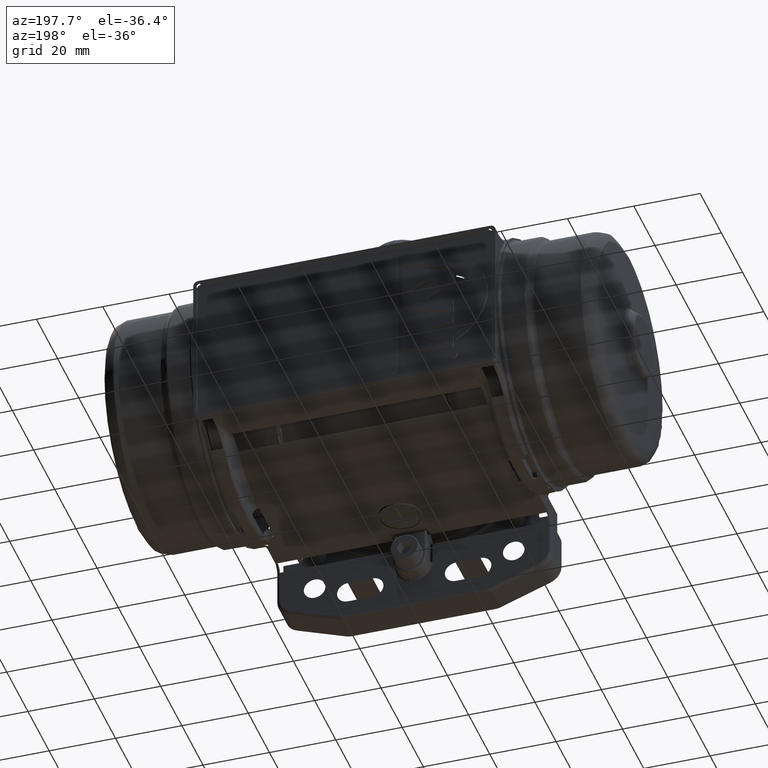
[diagram: clean part render]
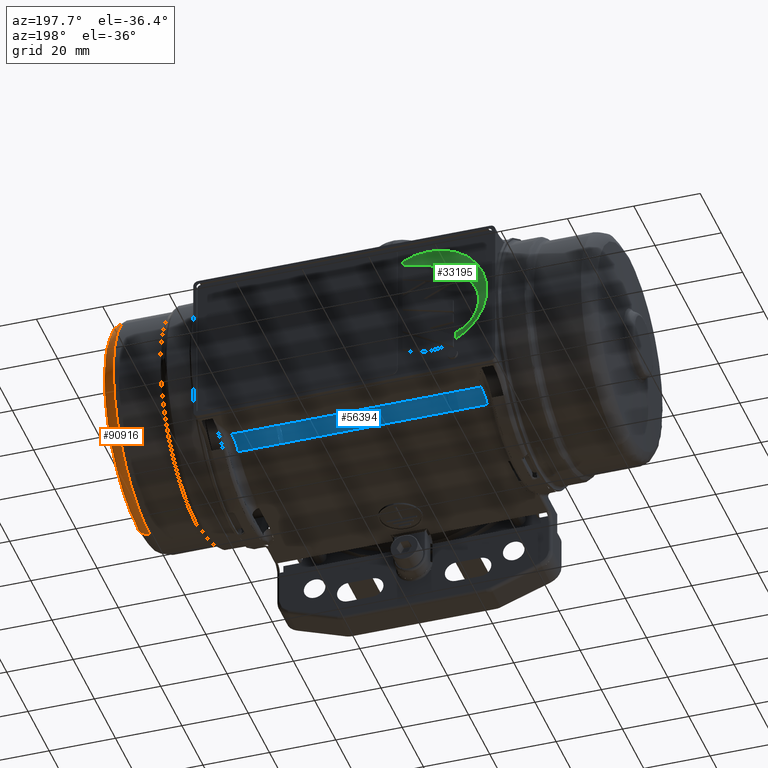
[diagram: same view with three faces highlighted in distinct colors, each labeled with its STEP entity id]
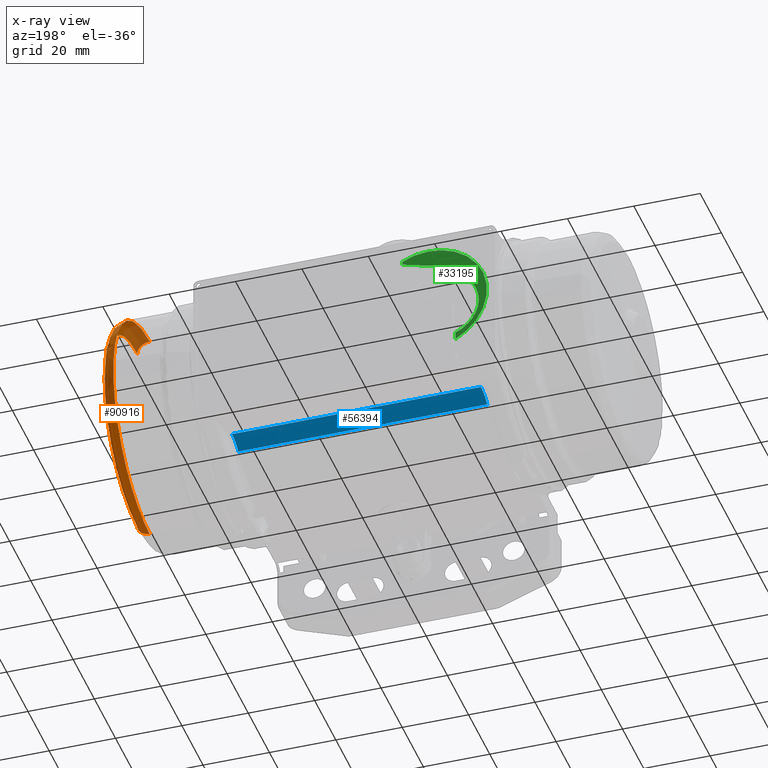
[diagram: x-ray of the same camera — body ghosted, the three highlighted faces saturated]
A machine part, auxiliary view with three faces highlighted in distinct colors.
The next image is the same camera in x-ray (body ghosted, the three faces saturated) — at least one of them is partly hidden behind the body in this view.
Their STEP definitions:

[orange] entity #90916 — the highlighted face is a freeform B-spline surface patch.
#154 = CARTESIAN_POINT ( 'NONE',  ( 71.84616858138170400, -23.07058983013639900, 25.00317688043774900 ) ) ;
#572 = CARTESIAN_POINT ( 'NONE',  ( 71.84616858138170400, -33.34469816173835000, 6.714140514754750400 ) ) ;
#656 = CARTESIAN_POINT ( 'NONE',  ( 70.43574938282010600, 0.3360905649999960100, -34.30299282390215200 ) ) ;
#991 = CARTESIAN_POINT ( 'NONE',  ( 71.84616858138170400, 32.05872122068554800, -13.16247379832032000 ) ) ;
#1408 = CARTESIAN_POINT ( 'NONE',  ( 71.84616858138170400, 7.021554411426430800, 33.51550353318204900 ) ) ;
#1827 = CARTESIAN_POINT ( 'NONE',  ( 73.06222453156000500, -13.46311546485228000, 30.51341199380139800 ) ) ;
#2247 = CARTESIAN_POINT ( 'NONE',  ( 73.92288612965070600, -24.60011871129570000, 20.48379015808129800 ) ) ;
#2425 = CARTESIAN_POINT ( 'NONE',  ( 70.43574938282010600, 0.3360905649999960100, -34.30299282390215200 ) ) ;
#2550 = CARTESIAN_POINT ( 'NONE',  ( 70.43574938282010600, 0.3360905650000000100, -0.002992830000007200100 ) ) ;
#2657 = CARTESIAN_POINT ( 'NONE',  ( 73.92288612965060700, -22.60644249168589700, -22.92140921378684800 ) ) ;
#3055 = CARTESIAN_POINT ( 'NONE',  ( 73.92288612965070600, -0.7009685618603099800, 32.21844872052780300 ) ) ;
#3183 = CARTESIAN_POINT ( 'NONE',  ( 71.84616858138170400, 0.3181463391479345000, -34.12684089303675700 ) ) ;
#3475 = CARTESIAN_POINT ( 'NONE',  ( 73.92288612965060700, -26.63677203919919700, -18.00517646669470300 ) ) ;
#3873 = CARTESIAN_POINT ( 'NONE',  ( 73.06222453156009100, 33.27604678807134800, 6.530378756752901000 ) ) ;
#4294 = CARTESIAN_POINT ( 'NONE',  ( 74.22128918806660600, -2.674790984704664700, 30.73064623487700000 ) ) ;
#4800 = CARTESIAN_POINT ( 'NONE',  ( 74.22128918866171400, 15.79887433322512900, 26.74649789419058300 ) ) ;
#5109 = CARTESIAN_POINT ( 'NONE',  ( 74.22128918806531300, 0.3360905649999965700, -0.002992830000007200100 ) ) ;
#5235 = CARTESIAN_POINT ( 'NONE',  ( 74.22128918866172900, 29.59574762434619500, 9.921996068527635200 ) ) ;
#5256 = EDGE_CURVE ( 'NONE', #37044, #107076, #72133, .T. ) ;
#5662 = CARTESIAN_POINT ( 'NONE',  ( 74.22128918866175700, 14.01140798299466000, 27.70293847330645300 ) ) ;
#6142 = CARTESIAN_POINT ( 'NONE',  ( 70.43574938282010600, -18.82800489602329800, 28.71076998319835000 ) ) ;
#6459 = CARTESIAN_POINT ( 'NONE',  ( 74.18057904128930600, 26.51672796140579900, -17.51625843180164900 ) ) ;
#6558 = CARTESIAN_POINT ( 'NONE',  ( 70.43574938282010600, -0.7678865789330759900, 34.29759244525914900 ) ) ;
#6609 = CARTESIAN_POINT ( 'NONE',  ( 71.84616858138170400, 0.3540347908520845600, 34.12085523303675000 ) ) ;
#6863 = CARTESIAN_POINT ( 'NONE',  ( 74.22128918806660600, -30.09478915111484900, 6.065994405119609700 ) ) ;
#6964 = CARTESIAN_POINT ( 'NONE',  ( 70.43574938282010600, -33.52526635811345600, -6.719973349123689500 ) ) ;
#7285 = CARTESIAN_POINT ( 'NONE',  ( 74.22128918806660600, -21.61692190924035000, -21.93292879304250000 ) ) ;
#7469 = CARTESIAN_POINT ( 'NONE',  ( 70.43574938282006300, 17.52293613633774100, -29.77110264382411100 ) ) ;
#7695 = CARTESIAN_POINT ( 'NONE',  ( 74.18057904128940500, 26.40920854585720100, 17.39868693959584800 ) ) ;
#7795 = CARTESIAN_POINT ( 'NONE',  ( 70.90284593313370500, 32.56163429641765100, 12.11484783761244100 ) ) ;
#8227 = CARTESIAN_POINT ( 'NONE',  ( 70.90284593313370500, 19.49989233426350000, -28.71632379756855300 ) ) ;
#8589 = VERTEX_POINT ( 'NONE', #90513 ) ;
#8654 = CARTESIAN_POINT ( 'NONE',  ( 70.43574938282010600, 19.53037402051525400, 28.69059900443515000 ) ) ;
#9072 = CARTESIAN_POINT ( 'NONE',  ( 70.90284593313370500, -9.619568674178021100, 32.87796100071234700 ) ) ;
#9392 = CARTESIAN_POINT ( 'NONE',  ( 74.22128918806660600, 0.3523033260173864500, 30.82819477318324900 ) ) ;
#9500 = CARTESIAN_POINT ( 'NONE',  ( 70.43574938282010600, 7.056064754421700300, 33.68852590421740000 ) ) ;
#9914 = CARTESIAN_POINT ( 'NONE',  ( 73.06222453156009100, -0.7378344126222020600, 33.36387121840474600 ) ) ;
#10318 = CARTESIAN_POINT ( 'NONE',  ( 71.84616858138170400, -9.568441511274759400, 32.70910127555205100 ) ) ;
#10401 = CARTESIAN_POINT ( 'NONE',  ( 70.43574938282009200, 2.580644547571264700, -34.30299283000330500 ) ) ;
#10731 = CARTESIAN_POINT ( 'NONE',  ( 71.84616858138170400, 34.02392515068439800, 6.678714328650900500 ) ) ;
#11174 = CARTESIAN_POINT ( 'NONE',  ( 73.06222453156009100, -2.922361509998724600, 33.25772776959745900 ) ) ;
#11595 = CARTESIAN_POINT ( 'NONE',  ( 73.06222453156009100, -32.60350168630154900, -6.537125527701939600 ) ) ;
#12011 = CARTESIAN_POINT ( 'NONE',  ( 73.92288612965060700, 25.29383223463385400, 20.45755313103875000 ) ) ;
#12425 = CARTESIAN_POINT ( 'NONE',  ( 73.92288612965060700, -12.08954798838646000, -29.95657694869069900 ) ) ;
#12843 = CARTESIAN_POINT ( 'NONE',  ( 73.92288612965070600, 32.14527924329240000, 6.306100239251230200 ) ) ;
#13249 = CARTESIAN_POINT ( 'NONE',  ( 73.92288612965070600, -2.810504899514044900, 32.11594897926499900 ) ) ;
#13654 = CARTESIAN_POINT ( 'NONE',  ( 73.92288612965060700, 27.29000514920990000, -18.03353417909445300 ) ) ;
#14081 = CARTESIAN_POINT ( 'NONE',  ( 74.22128918806660600, -16.88991246988435100, 25.80690601803525300 ) ) ;
#15296 = DIRECTION ( 'NONE',  ( 0.0000000000000000000, 1.406630242772633000E-017, 1.000000000000000000 ) ) ;
#15493 = CARTESIAN_POINT ( 'NONE',  ( 70.43574938282010600, -9.619568674178021100, 32.87796100071234700 ) ) ;
#15860 = VERTEX_POINT ( 'NONE', #29855 ) ;
#16216 = CARTESIAN_POINT ( 'NONE',  ( 74.18057904128930600, 29.73979560866084900, 11.05374575372100000 ) ) ;
#16313 = CARTESIAN_POINT ( 'NONE',  ( 70.43574938282010600, -26.20917034091000300, 21.80573493273729800 ) ) ;
#16616 = CARTESIAN_POINT ( 'NONE',  ( 74.22128918806660600, -11.55362525185925900, -28.66466694336455100 ) ) ;
#17029 = CARTESIAN_POINT ( 'NONE',  ( 74.18057904128940500, -2.720232650399560200, 31.19449302822249900 ) ) ;
#17214 = CARTESIAN_POINT ( 'NONE',  ( 70.43574938282007700, 15.53380322201003900, -30.83410621527787800 ) ) ;
#17438 = CARTESIAN_POINT ( 'NONE',  ( 74.18057904128930600, 31.83424199148150200, -0.01937788834485120300 ) ) ;
#17534 = CARTESIAN_POINT ( 'NONE',  ( 70.90284593313370500, 28.91141474468764700, 19.06870550130045000 ) ) ;
#17625 = CARTESIAN_POINT ( 'NONE',  ( 70.43574938282006300, 31.16320698178327600, -15.20881132184695200 ) ) ;
#17978 = CARTESIAN_POINT ( 'NONE',  ( 70.90284593313370500, 0.3541274188885459900, 34.29700242761084900 ) ) ;
#18382 = CARTESIAN_POINT ( 'NONE',  ( 70.90284593313370500, -3.013544363283959800, 34.18847873256685000 ) ) ;
#18818 = CARTESIAN_POINT ( 'NONE',  ( 70.43574938282010600, 24.73335748562924900, -24.42593169177750000 ) ) ;
#19137 = CARTESIAN_POINT ( 'NONE',  ( 74.22128918806660600, 6.376464138423099100, 30.28125435223050100 ) ) ;
#19235 = CARTESIAN_POINT ( 'NONE',  ( 70.90284593313370500, 24.73335748562924900, -24.42593169177750000 ) ) ;
#19314 = CARTESIAN_POINT ( 'NONE',  ( 74.18057904128930600, 0.3196331132321079700, -31.29949947576660200 ) ) ;
#19654 = CARTESIAN_POINT ( 'NONE',  ( 73.06222453156019000, -22.55095566476439800, 24.44803365178350100 ) ) ;
#20076 = CARTESIAN_POINT ( 'NONE',  ( 71.84616858138170400, 0.3180306671959229900, -34.34680982054940300 ) ) ;
#20148 = FACE_OUTER_BOUND ( 'NONE', #53540, .T. ) ;
#20498 = CARTESIAN_POINT ( 'NONE',  ( 71.84616858138170400, -6.314117797574569500, 33.52251617470964400 ) ) ;
#20908 = CARTESIAN_POINT ( 'NONE',  ( 73.06222453156019000, -27.44183660662584900, 18.57876554406799800 ) ) ;
#21313 = CARTESIAN_POINT ( 'NONE',  ( 71.84616858138170400, 13.46221512590384100, -31.73945357672205200 ) ) ;
#21743 = CARTESIAN_POINT ( 'NONE',  ( 73.92288612965070600, -28.11790220024380100, 15.22502318680300000 ) ) ;
#22145 = CARTESIAN_POINT ( 'NONE',  ( 73.92288612965070600, 23.25450737238610100, -22.94552546353195100 ) ) ;
#22406 = EDGE_CURVE ( 'NONE', #122891, #15860, #59405, .T. ) ;
#22545 = CARTESIAN_POINT ( 'NONE',  ( 73.92288612965070600, 3.516464148207449900, 32.11262190544430000 ) ) ;
#22938 = CARTESIAN_POINT ( 'NONE',  ( 73.92288612965060700, 28.80608307263165100, 15.19508937493474900 ) ) ;
#23362 = CARTESIAN_POINT ( 'NONE',  ( 73.92288612965070600, 9.720763474572738300, 30.87501591407755100 ) ) ;
#23776 = CARTESIAN_POINT ( 'NONE',  ( 74.22128918806660600, -20.81204469504135100, 22.59029466077000200 ) ) ;
#23816 = VERTEX_POINT ( 'NONE', #102830 ) ;
#25124 = CARTESIAN_POINT ( 'NONE',  ( 74.22128918866174300, 19.14010487689945000, -24.51915039239801800 ) ) ;
#25190 = CARTESIAN_POINT ( 'NONE',  ( 70.43574938282010600, -23.19141503948204900, 25.13225864851384700 ) ) ;
#25911 = CARTESIAN_POINT ( 'NONE',  ( 74.22128918806660600, -5.672429378238439800, 30.28759033362775100 ) ) ;
#26009 = CARTESIAN_POINT ( 'NONE',  ( 70.43574938282010600, -28.21915988760715200, 19.09874794939615200 ) ) ;
#26107 = CARTESIAN_POINT ( 'NONE',  ( 70.43574938282004900, 27.61605307183773700, 20.90948354670942100 ) ) ;
#26339 = CARTESIAN_POINT ( 'NONE',  ( 74.18057904128930600, -30.55406655543415100, 6.157590465772320200 ) ) ;
#26515 = CARTESIAN_POINT ( 'NONE',  ( 70.43574938282010600, 0.3541274188885459900, 34.29700242761084900 ) ) ;
#26736 = CARTESIAN_POINT ( 'NONE',  ( 74.18057904128930600, -21.13122247626344900, 22.93128337127070200 ) ) ;
#27148 = CARTESIAN_POINT ( 'NONE',  ( 74.18057904128930600, 0.3525480167679124800, 31.29351381576660200 ) ) ;
#27245 = CARTESIAN_POINT ( 'NONE',  ( 70.90284593313370500, 3.721683202961954900, 34.18493697360725000 ) ) ;
#27331 = CARTESIAN_POINT ( 'NONE',  ( 70.43574938282007700, 30.10871825123021800, 17.17602528041659600 ) ) ;
#27664 = CARTESIAN_POINT ( 'NONE',  ( 70.43574938282010600, 29.02925267098275000, -19.19698575343484800 ) ) ;
#27752 = CARTESIAN_POINT ( 'NONE',  ( 70.43574938282007700, 21.27007842451070700, 27.26046577082246700 ) ) ;
#27991 = CARTESIAN_POINT ( 'NONE',  ( 74.22128918806660600, 22.26602693337174800, -21.95600489933715200 ) ) ;
#28092 = CARTESIAN_POINT ( 'NONE',  ( 70.90284593313370500, 0.3179374420612189900, -34.52409249402384700 ) ) ;
#28130 = EDGE_CURVE ( 'NONE', #15860, #8589, #102732, .T. ) ;
#28526 = CARTESIAN_POINT ( 'NONE',  ( 70.90284593313370500, -28.21915988760715200, 19.09874794939615200 ) ) ;
#28931 = CARTESIAN_POINT ( 'NONE',  ( 70.90284593313370500, -33.51855828543535400, 6.748814335599130100 ) ) ;
#29361 = CARTESIAN_POINT ( 'NONE',  ( 73.06222453156009100, -12.53126025402850100, -31.02138061639119800 ) ) ;
#29488 = ORIENTED_EDGE ( 'NONE', *, *, #5256, .F. ) ;
#29771 = CARTESIAN_POINT ( 'NONE',  ( 71.84616858138170400, -34.00761876032219500, 0.01526156011055744700 ) ) ;
#29855 = CARTESIAN_POINT ( 'NONE',  ( 74.22128918806581100, 0.3360905649941880500, -30.83418469049520300 ) ) ;
#30189 = CARTESIAN_POINT ( 'NONE',  ( 71.84616858138170400, -13.77641665872993900, 31.20626533938294900 ) ) ;
#30606 = CARTESIAN_POINT ( 'NONE',  ( 73.06222453156009100, -29.12939771066750100, 15.76635564445615100 ) ) ;
#31024 = CARTESIAN_POINT ( 'NONE',  ( 71.84616858138170400, -28.07251475778105000, 19.00065119968820000 ) ) ;
#31096 = B_SPLINE_CURVE_WITH_KNOTS ( 'NONE', 3,
 ( #93325, #103055, #6609, #84011, #45901, #74692, #93728 ),
 .UNSPECIFIED., .F., .F.,
 ( 4, 1, 1, 1, 4 ),
 ( 0.0000000000000000000, 1.401289650940726000, 2.802579301881445300, 4.203868952822170400, 5.605158603762900400 ),
 .UNSPECIFIED. ) ;
#31443 = CARTESIAN_POINT ( 'NONE',  ( 73.92288612965060700, 6.648730825447310100, 31.64630099199575100 ) ) ;
#31759 = DIRECTION ( 'NONE',  ( -1.000000000000000000, -2.227060859987380100E-020, -1.037842000000052100E-018 ) ) ;
#31849 = CARTESIAN_POINT ( 'NONE',  ( 73.06222453156009100, 13.17081187411290000, -31.03489620192189900 ) ) ;
#32268 = CARTESIAN_POINT ( 'NONE',  ( 73.92288612965060700, -29.92410021405890000, 11.41215137080319900 ) ) ;
#32669 = CARTESIAN_POINT ( 'NONE',  ( 73.92288612965060700, -12.98941433979292100, 29.46584046928559900 ) ) ;
#33085 = CARTESIAN_POINT ( 'NONE',  ( 73.92288612965070600, 22.46228742566560000, 23.58541797641759900 ) ) ;
#33164 = CARTESIAN_POINT ( 'NONE',  ( 74.22128918866174300, 10.26877230089428700, -29.26003932139891700 ) ) ;
#33580 = CARTESIAN_POINT ( 'NONE',  ( 74.22128918866172900, 8.328769009209560500, -29.84842844675575400 ) ) ;
#34001 = CARTESIAN_POINT ( 'NONE',  ( 74.22128918866175700, 27.08964596197315400, -15.45874287610043000 ) ) ;
#34416 = CARTESIAN_POINT ( 'NONE',  ( 74.22128918866174300, 30.96966846342384000, 4.024021077058620200 ) ) ;
#34910 = CARTESIAN_POINT ( 'NONE',  ( 70.43574938282010600, -33.51855828543535400, 6.748814335599130100 ) ) ;
#35236 = CARTESIAN_POINT ( 'NONE',  ( 74.22128918806660600, -26.89067016686725300, 14.56823279486122000 ) ) ;
#35623 = CARTESIAN_POINT ( 'NONE',  ( 74.18057904128930600, -5.763112837575630600, 30.74475031521514600 ) ) ;
#35650 = CARTESIAN_POINT ( 'NONE',  ( 74.22128918806609500, 0.3523033260173864500, 30.82819477318850000 ) ) ;
#36031 = CARTESIAN_POINT ( 'NONE',  ( 74.22128918806660600, -30.69374356279774900, 0.01350016706881646000 ) ) ;
#36436 = CARTESIAN_POINT ( 'NONE',  ( 74.18057904128930600, 12.37464623417940000, -29.10991983419050300 ) ) ;
#36619 = CARTESIAN_POINT ( 'NONE',  ( 70.43574938282006300, 27.60505235308728400, -20.92981164177210100 ) ) ;
#36957 = CARTESIAN_POINT ( 'NONE',  ( 70.90284593313370500, 32.22247333868189400, -13.23040299699506200 ) ) ;
#37044 = VERTEX_POINT ( 'NONE', #57285 ) ;
#37050 = CARTESIAN_POINT ( 'NONE',  ( 70.43574938282004900, 34.41388252248900400, -4.501005489275300400 ) ) ;
#37388 = CARTESIAN_POINT ( 'NONE',  ( 70.43574938282010600, 0.3541274188885459900, 34.29700242761084900 ) ) ;
#37479 = CARTESIAN_POINT ( 'NONE',  ( 70.43574938282007700, 34.63667953528897000, 2.232542647731057300 ) ) ;
#37714 = CARTESIAN_POINT ( 'NONE',  ( 74.22128918806660600, 27.57816096399755100, 14.53959004021332100 ) ) ;
#37809 = CARTESIAN_POINT ( 'NONE',  ( 70.90284593313370500, 1.476141416710171800, 34.29641240996254900 ) ) ;
#38242 = CARTESIAN_POINT ( 'NONE',  ( 70.43574938282010600, 34.19036443580395000, -6.755582011149100700 ) ) ;
#38650 = CARTESIAN_POINT ( 'NONE',  ( 70.90284593313370500, -23.19141503948204900, 25.13225864851384700 ) ) ;
#39068 = CARTESIAN_POINT ( 'NONE',  ( 73.06222453156009100, -27.59561565923230100, -18.64512629997720000 ) ) ;
#39467 = CARTESIAN_POINT ( 'NONE',  ( 71.84616858138170400, -26.07284748714004900, 21.69373648539690100 ) ) ;
#39892 = CARTESIAN_POINT ( 'NONE',  ( 71.84616858138170400, 3.704296534518750000, 34.00936528976375700 ) ) ;
#40310 = CARTESIAN_POINT ( 'NONE',  ( 71.84616858138170400, 28.76466652648839800, 18.97076303420705300 ) ) ;
#40726 = CARTESIAN_POINT ( 'NONE',  ( 73.06222453156009100, 29.81814734919390000, 15.73535773179324900 ) ) ;
#41133 = CARTESIAN_POINT ( 'NONE',  ( 73.06222453156009100, 6.870172315262810700, -32.94255689045719700 ) ) ;
#41544 = CARTESIAN_POINT ( 'NONE',  ( 73.06222453156009100, 23.24883956166855000, 24.42394956056369900 ) ) ;
#41949 = CARTESIAN_POINT ( 'NONE',  ( 73.06222453156009100, 18.97822052150589700, -27.93469729169510200 ) ) ;
#42354 = CARTESIAN_POINT ( 'NONE',  ( 73.06222453156009100, 33.26879257692049700, -6.571764860390030300 ) ) ;
#42784 = CARTESIAN_POINT ( 'NONE',  ( 74.18057904128930600, 24.57782297995060400, 19.87056331209209900 ) ) ;
#43700 = CARTESIAN_POINT ( 'NONE',  ( 74.22128918866174300, 27.09776975875048800, 15.43868656691882700 ) ) ;
#44530 = CARTESIAN_POINT ( 'NONE',  ( 74.22128918866174300, 4.371158755424414900, -30.63551085521415700 ) ) ;
#44604 = CARTESIAN_POINT ( 'NONE',  ( 70.43574938282010600, -31.56418599270870100, -13.19686040768102100 ) ) ;
#44914 = CARTESIAN_POINT ( 'NONE',  ( 74.18057904128940500, 9.451527870471409200, 29.98916092288460100 ) ) ;
#45334 = CARTESIAN_POINT ( 'NONE',  ( 74.18057904128930600, -27.30158947362430100, 14.78814870742001900 ) ) ;
#45516 = CARTESIAN_POINT ( 'NONE',  ( 70.43574938282006300, 26.18593002343818900, 22.65343721874938500 ) ) ;
#45735 = EDGE_CURVE ( 'NONE', #107076, #23816, #73108, .T. ) ;
#45749 = CARTESIAN_POINT ( 'NONE',  ( 74.18057904128930600, -23.88472719651500100, 19.89604762863600100 ) ) ;
#45901 = CARTESIAN_POINT ( 'NONE',  ( 73.92288612965070600, 0.3530341077606165000, 32.21789446703570500 ) ) ;
#45933 = CARTESIAN_POINT ( 'NONE',  ( 70.43574938282004900, 34.63549922352137100, -2.256565162243005000 ) ) ;
#46155 = CARTESIAN_POINT ( 'NONE',  ( 74.18057904128930600, 17.82180870943114900, -26.20203299602475200 ) ) ;
#46253 = CARTESIAN_POINT ( 'NONE',  ( 70.90284593313370500, 7.053018710997579700, -33.86432077339095100 ) ) ;
#46573 = CARTESIAN_POINT ( 'NONE',  ( 74.22128918806660600, 12.19565599538140100, -28.67715564234535100 ) ) ;
#46673 = CARTESIAN_POINT ( 'NONE',  ( 70.43574938282010600, 34.19782164508274700, 6.713205279635899600 ) ) ;
#46994 = CARTESIAN_POINT ( 'NONE',  ( 74.22128918806660600, 24.21739490260760200, 19.57508163992229900 ) ) ;
#47092 = CARTESIAN_POINT ( 'NONE',  ( 70.43574938282010600, 32.22247333868189400, -13.23040299699506200 ) ) ;
#47183 = CARTESIAN_POINT ( 'NONE',  ( 70.43574938282007700, 32.88774285661422400, 11.03865359011098600 ) ) ;
#47234 = AXIS2_PLACEMENT_3D ( 'NONE', #5109, #63454, #15296 ) ;
#47534 = CARTESIAN_POINT ( 'NONE',  ( 70.90284593313370500, 34.85708221369460300, -0.02095034295454665000 ) ) ;
#47956 = CARTESIAN_POINT ( 'NONE',  ( 70.90284593313370500, -0.7678865789330741000, 34.29759244525914900 ) ) ;
#48292 = CARTESIAN_POINT ( 'NONE',  ( 74.22128918806660600, -5.733552495390029900, -30.43350948927440000 ) ) ;
#48389 = CARTESIAN_POINT ( 'NONE',  ( 73.06222453156009100, -23.42201411905099900, -23.73612353066604900 ) ) ;
#48809 = CARTESIAN_POINT ( 'NONE',  ( 71.84616858138170400, 1.470286699889011800, 34.12026824541664600 ) ) ;
#49224 = CARTESIAN_POINT ( 'NONE',  ( 71.84616858138170400, -6.381768644816170300, -33.68337972672710400 ) ) ;
#49308 = CARTESIAN_POINT ( 'NONE',  ( 70.43574938282007700, 4.825143066238907400, -34.08196626263179500 ) ) ;
#49649 = CARTESIAN_POINT ( 'NONE',  ( 71.84616858138170400, 19.43180201905704900, 28.54324342418130200 ) ) ;
#50064 = CARTESIAN_POINT ( 'NONE',  ( 73.06222453156009100, -30.99980327514104800, 11.81794212239343800 ) ) ;
#50487 = CARTESIAN_POINT ( 'NONE',  ( 73.06222453156009100, 1.445107261712731800, 33.36272330570880500 ) ) ;
#50612 = CARTESIAN_POINT ( 'NONE',  ( 74.22128918818950200, 0.3198778039833749500, -30.83418043177885100 ) ) ;
#50885 = CARTESIAN_POINT ( 'NONE',  ( 73.06222453156009100, 33.91736114433720000, -0.02046150840868379800 ) ) ;
#51302 = CARTESIAN_POINT ( 'NONE',  ( 73.06222453156009100, 31.68439928752539500, 11.78497926644402000 ) ) ;
#51696 = CARTESIAN_POINT ( 'NONE',  ( 73.92288612965070600, 27.17931001604860000, 17.91266686268009800 ) ) ;
#52110 = CARTESIAN_POINT ( 'NONE',  ( 73.92288612965070600, 32.76457846829475100, -0.01986184110913090000 ) ) ;
#52506 = CARTESIAN_POINT ( 'NONE',  ( 74.18057904128930600, 0.3525480167679124800, 31.29351381576660200 ) ) ;
#52583 = CARTESIAN_POINT ( 'NONE',  ( 74.22128918806581100, 0.3360905649941880500, -30.83418469049520300 ) ) ;
#53433 = CARTESIAN_POINT ( 'NONE',  ( 74.22128918866174300, 23.57169872452517700, 20.36215998856366500 ) ) ;
#53540 = EDGE_LOOP ( 'NONE', ( #101697, #29488, #88749, #78426, #101623, #123823 ) ) ;
#54394 = B_SPLINE_SURFACE_WITH_KNOTS ( 'NONE', 3, 3, ( 
 ( #122889, #6558, #104249, #63646, #15493, #83135, #6142, #25190, #16313, #26009, #92873, #74635, #34910, #102601, #6964, #44604, #112337, #73803, #83541, #93272, #103429, #84353, #85617, #55994, #114833, #18818, #27664, #47092, #38242, #75874, #46673, #114397, #125426, #96174, #67415, #86459, #8654, #76306, #124582, #9500, #57274, #95331, #37388 ),
 ( #17978, #47956, #18382, #57692, #9072, #115240, #113975, #38650, #56411, #28526, #105939, #86876, #28931, #76736, #66141, #115668, #86050, #77148, #96604, #65704, #105521, #28092, #46253, #124158, #8227, #19235, #123738, #36957, #75468, #47534, #105106, #7795, #56839, #17534, #104674, #66565, #125004, #66993, #95758, #85183, #27245, #37809, #94913 ),
 ( #116085, #106766, #98282, #20498, #10318, #30189, #116927, #154, #39467, #31024, #58943, #69506, #572, #29771, #107199, #117350, #59345, #67830, #68660, #98687, #49224, #20076, #88128, #21313, #68229, #107616, #97014, #991, #108043, #77988, #10731, #88551, #79247, #40310, #78407, #87716, #49649, #58118, #97860, #1408, #39892, #48809, #117768 ),
 ( #69075, #9914, #11174, #106356, #116506, #1827, #77571, #19654, #78817, #20908, #30606, #50064, #59770, #97445, #11595, #88975, #39068, #48389, #87291, #29361, #58525, #90204, #41133, #31849, #41949, #99520, #61400, #99105, #42354, #50885, #3873, #51302, #40726, #79654, #80873, #41544, #118172, #109267, #91018, #118599, #61812, #50487, #60190 ),
 ( #71128, #3055, #13249, #70328, #119401, #32669, #108871, #90617, #2247, #100335, #21743, #32268, #60590, #119001, #109691, #61000, #3475, #2657, #110091, #12425, #71554, #70731, #108455, #89378, #80059, #22145, #13654, #69923, #89798, #52110, #12843, #119807, #22938, #51696, #12011, #33085, #80459, #81271, #23362, #31443, #22545, #99911, #122387 ),
 ( #27148, #74124, #17029, #35623, #85077, #103331, #75366, #26736, #45749, #104155, #45334, #62231, #26339, #94396, #93591, #54667, #65613, #123637, #122794, #55481, #84671, #120237, #64790, #36436, #46155, #113461, #6459, #94817, #64377, #17438, #100756, #16216, #71983, #7695, #42784, #123219, #93177, #110497, #44914, #102916, #83863, #113873, #52506 ),
 ( #81705, #55903, #4294, #25911, #93984, #113061, #14081, #23776, #55080, #103731, #35236, #112665, #6863, #36031, #74535, #65191, #84257, #7285, #74939, #16616, #48292, #77468, #96496, #46573, #85944, #27991, #105013, #115982, #96073, #77051, #95653, #114295, #37714, #87189, #46994, #58025, #56306, #124064, #105418, #19137, #67318, #124896, #9392 ) ),
 .UNSPECIFIED., .F., .T., .F.,
 ( 4, 1, 1, 1, 4 ),
 ( 4, 1, 1, 1, 1, 1, 1, 1, 1, 1, 1, 1, 1, 1, 1, 1, 1, 1, 1, 1, 1, 1, 1, 1, 1, 1, 1, 1, 1, 1, 1, 1, 1, 1, 1, 1, 1, 1, 1, 1, 4 ),
 ( 0.0000000000000000000, 1.401289650940726000, 2.802579301881445300, 4.203868952822170400, 5.605158603762900400 ),
 ( 0.0000000000000000000, 3.231698556428625100, 6.463397112857250300, 9.695095669285880300, 12.92679422571450100, 19.38240589368595200, 25.83801756165739900, 29.06971611808605300, 32.30141467451465300, 35.53311323094325000, 38.76481178737190400, 45.22042345534340100, 51.67603512331479700, 58.13164679128630000, 64.58725845925769700, 71.04287012722920700, 77.49848179520060400, 83.95409346317210000, 90.40970513114349700, 96.86531679911499300, 103.3209284670864000, 109.7765401350580000, 116.2321518030292000, 122.6877634710007900, 129.1433751389721700, 135.5989868069436000, 142.0545984749150000, 148.5102101428865900, 154.9658218108579900, 161.4214334788295000, 167.8770451468010100, 171.1087437032294900, 174.3404422596580000, 177.5721408160870000, 180.8038393725154800, 187.2594510404870200, 193.7150627084585000, 196.9467612648869900, 200.1784598213155000, 203.4101583777440100, 206.6418569341730100 ),
 .UNSPECIFIED. ) ;
#54667 = CARTESIAN_POINT ( 'NONE',  ( 74.18057904128930600, -28.77082941536340100, -12.04153572853396000 ) ) ;
#55080 = CARTESIAN_POINT ( 'NONE',  ( 74.22128918806660600, -23.52461007996460300, 19.60018705354554700 ) ) ;
#55102 = CARTESIAN_POINT ( 'NONE',  ( 74.22128918866174300, 4.387266484753406600, 30.62739909589045300 ) ) ;
#55481 = CARTESIAN_POINT ( 'NONE',  ( 74.18057904128930600, -11.73307053472334100, -29.09724264978620000 ) ) ;
#55827 = B_SPLINE_CURVE_WITH_KNOTS ( 'NONE', 3,
 ( #50612, #19314, #99640, #98409, #3183, #70857, #60313 ),
 .UNSPECIFIED., .F., .F.,
 ( 4, 1, 1, 1, 4 ),
 ( 0.0000000000000000000, 1.401289650940730000, 2.802579301881455100, 4.203868952822174900, 5.605158603762900400 ),
 .UNSPECIFIED. ) ;
#55903 = CARTESIAN_POINT ( 'NONE',  ( 74.22128918806660600, -0.6562397889429629800, 30.82872512150165200 ) ) ;
#55994 = CARTESIAN_POINT ( 'NONE',  ( 70.43574938282010600, 13.52997213891018000, -31.90327708560414900 ) ) ;
#56075 = CARTESIAN_POINT ( 'NONE',  ( 70.43574938282006300, 30.09968044851623900, -17.19766467411360000 ) ) ;
#56306 = CARTESIAN_POINT ( 'NONE',  ( 74.22128918806660600, 17.58922863924964700, 25.78877495924890100 ) ) ;
#56411 = CARTESIAN_POINT ( 'NONE',  ( 70.90284593313370500, -26.20917034091000300, 21.80573493273729800 ) ) ;
#56839 = CARTESIAN_POINT ( 'NONE',  ( 70.90284593313370500, 30.64315812008310000, 16.17577166982185200 ) ) ;
#57274 = CARTESIAN_POINT ( 'NONE',  ( 70.43574938282010600, 3.721683202961954900, 34.18493697360725000 ) ) ;
#57285 = CARTESIAN_POINT ( 'NONE',  ( 70.43574938282010600, 0.3541274188885459900, 34.29700242761084900 ) ) ;
#57692 = CARTESIAN_POINT ( 'NONE',  ( 70.90284593313370500, -6.348446151874960600, 33.69557474497809600 ) ) ;
#58025 = CARTESIAN_POINT ( 'NONE',  ( 74.22128918806660600, 21.50797574827694800, 22.56804042955034700 ) ) ;
#58118 = CARTESIAN_POINT ( 'NONE',  ( 71.84616858138170400, 14.48141311803930100, 31.19140579368724900 ) ) ;
#58525 = CARTESIAN_POINT ( 'NONE',  ( 73.06222453156009100, -6.232630488330530100, -32.93566670467365000 ) ) ;
#58943 = CARTESIAN_POINT ( 'NONE',  ( 71.84616858138170400, -29.79839074077254700, 16.12438752636534600 ) ) ;
#59345 = CARTESIAN_POINT ( 'NONE',  ( 71.84616858138170400, -28.22978525479894800, -19.06838272936414600 ) ) ;
#59405 = CIRCLE ( 'NONE', #47234, 30.83119186598505100 ) ;
#59770 = CARTESIAN_POINT ( 'NONE',  ( 73.06222453156009100, -32.59697621895805500, 6.565018472655179200 ) ) ;
#60190 = CARTESIAN_POINT ( 'NONE',  ( 73.06222453156009100, 0.3536364245452659500, 33.36329726205675400 ) ) ;
#60313 = CARTESIAN_POINT ( 'NONE',  ( 70.43574938282010600, 0.3180537111114569700, -34.30298808761084900 ) ) ;
#60590 = CARTESIAN_POINT ( 'NONE',  ( 73.92288612965060700, -31.46644517583374800, 6.339550838014520000 ) ) ;
#61000 = CARTESIAN_POINT ( 'NONE',  ( 73.92288612965070600, -29.63053794297714900, -12.39710883612813900 ) ) ;
#61400 = CARTESIAN_POINT ( 'NONE',  ( 73.06222453156009100, 28.24817519638770200, -18.67449208526905100 ) ) ;
#61722 = DIRECTION ( 'NONE',  ( 0.0000000000000000000, -1.422422675272390600E-017, -1.000000000000000000 ) ) ;
#61812 = CARTESIAN_POINT ( 'NONE',  ( 73.06222453156009100, 3.629521518658934900, 33.25428242343945600 ) ) ;
#62231 = CARTESIAN_POINT ( 'NONE',  ( 74.18057904128930600, -29.05596971839600000, 11.08466385212024000 ) ) ;
#62734 = CARTESIAN_POINT ( 'NONE',  ( 74.22128918866172900, 20.71956491603856800, 23.21654440154270200 ) ) ;
#63167 = CARTESIAN_POINT ( 'NONE',  ( 74.22128918866175700, 31.16781183104446400, 2.006459742066858200 ) ) ;
#63454 = DIRECTION ( 'NONE',  ( 1.000000000000000000, -2.250390809236215400E-016, 2.250608388436215200E-016 ) ) ;
#63579 = CARTESIAN_POINT ( 'NONE',  ( 74.22128918866174300, 19.15299424062680700, 24.50327314277984000 ) ) ;
#63646 = CARTESIAN_POINT ( 'NONE',  ( 70.43574938282010600, -6.348446151874960600, 33.69557474497809600 ) ) ;
#63986 = EDGE_CURVE ( 'NONE', #37044, #8589, #31096, .T. ) ;
#63993 = CARTESIAN_POINT ( 'NONE',  ( 74.22128918866177100, 23.56098637822254800, -20.38036141211587100 ) ) ;
#64377 = CARTESIAN_POINT ( 'NONE',  ( 74.18057904128930600, 31.22590554099835100, -6.164289663913459400 ) ) ;
#64790 = CARTESIAN_POINT ( 'NONE',  ( 74.18057904128930600, 6.464849032210149300, -30.89924418675990100 ) ) ;
#64969 = CARTESIAN_POINT ( 'NONE',  ( 70.43574938282006300, 33.53708809882140700, -8.903654903131847900 ) ) ;
#65191 = CARTESIAN_POINT ( 'NONE',  ( 74.22128918806660600, -28.33806532794909900, -11.86254567961098200 ) ) ;
#65613 = CARTESIAN_POINT ( 'NONE',  ( 74.18057904128930600, -25.86295125422795100, -17.48871426995424700 ) ) ;
#65704 = CARTESIAN_POINT ( 'NONE',  ( 70.90284593313370500, -12.89133360631240100, -31.88938328685310400 ) ) ;
#65798 = CARTESIAN_POINT ( 'NONE',  ( 70.43574938282004900, 11.38629534130043900, -32.55174083945084400 ) ) ;
#66141 = CARTESIAN_POINT ( 'NONE',  ( 70.90284593313370500, -33.52526635811345600, -6.719973349123689500 ) ) ;
#66235 = CARTESIAN_POINT ( 'NONE',  ( 70.43574938282009200, 9.245481799311908900, 33.19566332374918000 ) ) ;
#66565 = CARTESIAN_POINT ( 'NONE',  ( 70.90284593313370500, 23.89001818944549900, 25.10750060042564900 ) ) ;
#66993 = CARTESIAN_POINT ( 'NONE',  ( 70.90284593313370500, 14.55443122782164000, 31.35243117962375300 ) ) ;
#67052 = EDGE_CURVE ( 'NONE', #122891, #23816, #55827, .T. ) ;
#67318 = CARTESIAN_POINT ( 'NONE',  ( 74.22128918806660600, 3.379293369694270400, 30.72746265907445100 ) ) ;
#67415 = CARTESIAN_POINT ( 'NONE',  ( 70.43574938282010600, 26.90427327882214900, 21.77780491656984900 ) ) ;
#67830 = CARTESIAN_POINT ( 'NONE',  ( 71.84616858138170400, -23.96142504933795100, -24.27496744435845200 ) ) ;
#68229 = CARTESIAN_POINT ( 'NONE',  ( 71.84616858138170400, 19.40147687112200000, -28.56886684724454600 ) ) ;
#68660 = CARTESIAN_POINT ( 'NONE',  ( 71.84616858138170400, -18.75932825386454900, -28.54879976381964800 ) ) ;
#69075 = CARTESIAN_POINT ( 'NONE',  ( 73.06222453156009100, 0.3536364245452659500, 33.36329726205675400 ) ) ;
#69506 = CARTESIAN_POINT ( 'NONE',  ( 71.84616858138170400, -31.71126253809439900, 12.08632807339116000 ) ) ;
#69923 = CARTESIAN_POINT ( 'NONE',  ( 73.92288612965070600, 30.28966746623805100, -12.42861822794644100 ) ) ;
#70328 = CARTESIAN_POINT ( 'NONE',  ( 73.92288612965060700, -5.943260279502929700, 31.65292256444844600 ) ) ;
#70731 = CARTESIAN_POINT ( 'NONE',  ( 73.92288612965070600, 0.3190378008842444900, -32.43158220123150700 ) ) ;
#70857 = CARTESIAN_POINT ( 'NONE',  ( 70.90284593313370500, 0.3180537111114694600, -34.30298808761084900 ) ) ;
#71128 = CARTESIAN_POINT ( 'NONE',  ( 73.92288612965070600, 0.3530341077606165000, 32.21789446703570500 ) ) ;
#71554 = CARTESIAN_POINT ( 'NONE',  ( 73.92288612965070600, -6.007138489266780300, -31.80514914939564600 ) ) ;
#71983 = CARTESIAN_POINT ( 'NONE',  ( 74.18057904128930600, 27.98931133157989800, 14.75907366260732100 ) ) ;
#72133 = B_SPLINE_CURVE_WITH_KNOTS ( 'NONE', 3,
 ( #26515, #75129, #95416, #66235, #113244, #124248, #85704, #27752, #84041, #45516, #26107, #27331, #113631, #47183, #94581, #93761, #37479, #45933, #37050, #64969, #74722, #17625, #56075, #36619, #84441, #123403, #123832, #7469, #17214, #65798, #107281, #49308, #10401, #656 ),
 .UNSPECIFIED., .F., .F.,
 ( 4, 2, 2, 2, 2, 2, 2, 2, 2, 2, 2, 2, 2, 2, 2, 2, 4 ),
 ( 0.0000000000000000000, 0.06249999999999995800, 0.1249999999999999200, 0.1874999999999998600, 0.2499999999999997800, 0.3124999999999996700, 0.3749999999999996100, 0.4374999999999996100, 0.4999999999999996100, 0.5624999999999996700, 0.6249999999999995600, 0.6874999999999996700, 0.7499999999999996700, 0.8124999999999997800, 0.8749999999999998900, 0.9374999999999998900, 1.000000000000000000 ),
 .UNSPECIFIED. ) ;
#72492 = CARTESIAN_POINT ( 'NONE',  ( 74.22128918866172900, 15.78480582050280400, -26.76061105025346600 ) ) ;
#73108 = CIRCLE ( 'NONE', #99848, 34.30000000000330100 ) ;
#73803 = CARTESIAN_POINT ( 'NONE',  ( 70.43574938282010600, -24.08684874723625000, -24.40025929969650100 ) ) ;
#74124 = CARTESIAN_POINT ( 'NONE',  ( 74.18057904128930600, -0.6712165136856509400, 31.29405216835564500 ) ) ;
#74535 = CARTESIAN_POINT ( 'NONE',  ( 74.22128918806660600, -30.10081882679385100, -6.040675487290700500 ) ) ;
#74635 = CARTESIAN_POINT ( 'NONE',  ( 70.43574938282010600, -31.87669087232584900, 12.14873310923306000 ) ) ;
#74692 = CARTESIAN_POINT ( 'NONE',  ( 74.18057904128930600, 0.3525480167679124800, 31.29351381576660200 ) ) ;
#74722 = CARTESIAN_POINT ( 'NONE',  ( 70.43574938282003500, 32.88193204215714600, -11.06175519857724200 ) ) ;
#74939 = CARTESIAN_POINT ( 'NONE',  ( 74.22128918806660600, -16.91678311085875200, -25.79437272464254600 ) ) ;
#75129 = CARTESIAN_POINT ( 'NONE',  ( 70.43574938282004900, 2.598681091122843500, 34.29582211588407900 ) ) ;
#75366 = CARTESIAN_POINT ( 'NONE',  ( 74.18057904128930600, -17.14989555399045100, 26.19644136697200300 ) ) ;
#75468 = CARTESIAN_POINT ( 'NONE',  ( 70.90284593313370500, 34.19036443580395000, -6.755582011149100700 ) ) ;
#75874 = CARTESIAN_POINT ( 'NONE',  ( 70.43574938282010600, 34.85708221369460300, -0.02095034295454665000 ) ) ;
#76306 = CARTESIAN_POINT ( 'NONE',  ( 70.43574938282010600, 14.55443122782166100, 31.35243117962375300 ) ) ;
#76736 = CARTESIAN_POINT ( 'NONE',  ( 70.90284593313370500, -34.18490087802909700, 0.01535578921394560100 ) ) ;
#77051 = CARTESIAN_POINT ( 'NONE',  ( 74.22128918806660600, 31.36592487766405000, -0.01913427394570460200 ) ) ;
#77148 = CARTESIAN_POINT ( 'NONE',  ( 70.90284593313370500, -24.08684874723625000, -24.40025929969650100 ) ) ;
#77468 = CARTESIAN_POINT ( 'NONE',  ( 74.22128918806660600, 0.3197732933879869900, -31.03292423424829800 ) ) ;
#77571 = CARTESIAN_POINT ( 'NONE',  ( 73.06222453156009100, -18.30632508846829900, 27.92913172174029800 ) ) ;
#77988 = CARTESIAN_POINT ( 'NONE',  ( 71.84616858138170400, 34.67980009493149400, -0.02085812237243835100 ) ) ;
#78407 = CARTESIAN_POINT ( 'NONE',  ( 71.84616858138170400, 26.76783271039575100, 21.66594990347649800 ) ) ;
#78426 = ORIENTED_EDGE ( 'NONE', *, *, #28130, .F. ) ;
#78817 = CARTESIAN_POINT ( 'NONE',  ( 73.06222453156000500, -25.48656245007280000, 21.21206366213519700 ) ) ;
#79247 = CARTESIAN_POINT ( 'NONE',  ( 71.84616858138170400, 30.48751655554350000, 16.09268582806259900 ) ) ;
#79654 = CARTESIAN_POINT ( 'NONE',  ( 73.06222453156009100, 28.13354502215365100, 18.54954090334405200 ) ) ;
#80059 = CARTESIAN_POINT ( 'NONE',  ( 73.92288612965070600, 18.33827080883435200, -26.97585373216659800 ) ) ;
#80459 = CARTESIAN_POINT ( 'NONE',  ( 73.92288612965070600, 18.36690483545634900, 26.95132543449990000 ) ) ;
#80873 = CARTESIAN_POINT ( 'NONE',  ( 73.06222453156009100, 26.18104141674849900, 21.18489394929065400 ) ) ;
#81271 = CARTESIAN_POINT ( 'NONE',  ( 73.92288612965060700, 13.69258080958635800, 29.45180958548074900 ) ) ;
#81705 = CARTESIAN_POINT ( 'NONE',  ( 74.22128918806660600, 0.3523033260173864500, 30.82819477318324900 ) ) ;
#81776 = CARTESIAN_POINT ( 'NONE',  ( 74.22128918866175700, 20.70735196948343000, -23.23324561934022000 ) ) ;
#83135 = CARTESIAN_POINT ( 'NONE',  ( 70.43574938282010600, -13.84926537588734000, 31.36736743024674800 ) ) ;
#83474 = CARTESIAN_POINT ( 'NONE',  ( 74.22128918866172900, 2.353649587591960700, -30.83418468916761400 ) ) ;
#83541 = CARTESIAN_POINT ( 'NONE',  ( 70.43574938282010600, -18.85789874474080100, -28.69615312792315000 ) ) ;
#83863 = CARTESIAN_POINT ( 'NONE',  ( 74.18057904128930600, 3.425222843242049700, 31.19126140436990000 ) ) ;
#84011 = CARTESIAN_POINT ( 'NONE',  ( 73.06222453156009100, 0.3536364245452659500, 33.36329726205675400 ) ) ;
#84041 = CARTESIAN_POINT ( 'NONE',  ( 70.43574938282007700, 23.01290349634299300, 25.82896756517283200 ) ) ;
#84257 = CARTESIAN_POINT ( 'NONE',  ( 74.22128918806660600, -25.47342173919589900, -17.22873512111785000 ) ) ;
#84353 = CARTESIAN_POINT ( 'NONE',  ( 70.43574938282010600, 0.3179374420612189900, -34.52409249402384700 ) ) ;
#84441 = CARTESIAN_POINT ( 'NONE',  ( 70.43574938282007700, 26.17401243426889600, -22.67301303419169400 ) ) ;
#84671 = CARTESIAN_POINT ( 'NONE',  ( 74.18057904128930600, -5.825158454071670100, -30.89278141416604800 ) ) ;
#85077 = CARTESIAN_POINT ( 'NONE',  ( 74.18057904128930600, -8.747798607631480600, 29.99873114556509900 ) ) ;
#85183 = CARTESIAN_POINT ( 'NONE',  ( 70.90284593313370500, 7.056064754421700300, 33.68852590421740000 ) ) ;
#85617 = CARTESIAN_POINT ( 'NONE',  ( 70.43574938282010600, 7.053018710997579700, -33.86432077339089400 ) ) ;
#85704 = CARTESIAN_POINT ( 'NONE',  ( 70.43574938282006300, 17.53858749320310700, 29.75607506561906100 ) ) ;
#85944 = CARTESIAN_POINT ( 'NONE',  ( 74.22128918806660600, 17.56182960959295200, -25.81250350557265000 ) ) ;
#86050 = CARTESIAN_POINT ( 'NONE',  ( 70.90284593313370500, -28.37724221442769900, -19.16679821105400100 ) ) ;
#86459 = CARTESIAN_POINT ( 'NONE',  ( 70.43574938282010600, 23.89001818944549900, 25.10750060042564900 ) ) ;
#86876 = CARTESIAN_POINT ( 'NONE',  ( 70.90284593313370500, -31.87669087232584900, 12.14873310923306000 ) ) ;
#87189 = CARTESIAN_POINT ( 'NONE',  ( 74.22128918806660600, 26.02155127684200100, 17.13995732924729900 ) ) ;
#87291 = CARTESIAN_POINT ( 'NONE',  ( 73.06222453156009100, -18.33540517494599700, -27.91507570254665200 ) ) ;
#87716 = CARTESIAN_POINT ( 'NONE',  ( 71.84616858138170400, 23.76905729014840000, 24.97854597699434700 ) ) ;
#88128 = CARTESIAN_POINT ( 'NONE',  ( 71.84616858138170400, 7.018524010920040200, -33.69042634929599700 ) ) ;
#88551 = CARTESIAN_POINT ( 'NONE',  ( 71.84616858138170400, 32.39614042158530800, 12.05261681915707900 ) ) ;
#88749 = ORIENTED_EDGE ( 'NONE', *, *, #63986, .T. ) ;
#88975 = CARTESIAN_POINT ( 'NONE',  ( 73.06222453156009100, -30.69580531857650000, -12.83770052388531900 ) ) ;
#89378 = CARTESIAN_POINT ( 'NONE',  ( 73.92288612965070600, 12.73021971897026100, -29.96962856926160200 ) ) ;
#89644 = CARTESIAN_POINT ( 'NONE',  ( 74.22128918818950200, 0.3198778039833749500, -30.83418043177885100 ) ) ;
#89798 = CARTESIAN_POINT ( 'NONE',  ( 73.92288612965070600, 32.13827405574305400, -6.346271111378470700 ) ) ;
#90204 = CARTESIAN_POINT ( 'NONE',  ( 73.06222453156009100, 0.3184316014490415300, -33.58436848430250200 ) ) ;
#90513 = CARTESIAN_POINT ( 'NONE',  ( 74.22128918806609500, 0.3523033260173864500, 30.82819477318850000 ) ) ;
#90617 = CARTESIAN_POINT ( 'NONE',  ( 73.92288612965060700, -21.76528585703264800, 23.60867530549749900 ) ) ;
#90916 = ADVANCED_FACE ( 'NONE', ( #20148 ), #54394, .F. ) ;
#91018 = CARTESIAN_POINT ( 'NONE',  ( 73.06222453156019000, 10.05437410676571900, 31.97268144991780000 ) ) ;
#91100 = CARTESIAN_POINT ( 'NONE',  ( 74.22128918866172900, 24.85719138013508500, 18.79457484990013700 ) ) ;
#92378 = CARTESIAN_POINT ( 'NONE',  ( 74.22128918866175700, 29.59052446588016500, -9.943366716603993200 ) ) ;
#92873 = CARTESIAN_POINT ( 'NONE',  ( 70.43574938282010600, -29.95394483690354900, 16.20763701218990200 ) ) ;
#93177 = CARTESIAN_POINT ( 'NONE',  ( 74.18057904128930600, 17.84962125835975000, 26.17803666556685000 ) ) ;
#93204 = CARTESIAN_POINT ( 'NONE',  ( 74.22128918866177100, 2.369862069653752000, 30.82713382126927100 ) ) ;
#93272 = CARTESIAN_POINT ( 'NONE',  ( 70.43574938282010600, -12.89133360631240100, -31.88938328685310400 ) ) ;
#93325 = CARTESIAN_POINT ( 'NONE',  ( 70.43574938282010600, 0.3541274188885459900, 34.29700242761084900 ) ) ;
#93591 = CARTESIAN_POINT ( 'NONE',  ( 74.18057904128930600, -30.56018723386494800, -6.131799084268929600 ) ) ;
#93728 = CARTESIAN_POINT ( 'NONE',  ( 74.22128918806609500, 0.3523033260173864500, 30.82819477318850000 ) ) ;
#93761 = CARTESIAN_POINT ( 'NONE',  ( 70.43574938282006300, 34.41624311685814100, 4.477099202869441200 ) ) ;
#93984 = CARTESIAN_POINT ( 'NONE',  ( 74.22128918806660600, -8.612738594046430100, 29.55266303853415300 ) ) ;
#94396 = CARTESIAN_POINT ( 'NONE',  ( 74.18057904128930600, -31.16206067382514900, 0.01374908727597824000 ) ) ;
#94581 = CARTESIAN_POINT ( 'NONE',  ( 70.43574938282007700, 33.54176397314108000, 8.880209075437909000 ) ) ;
#94817 = CARTESIAN_POINT ( 'NONE',  ( 74.18057904128930600, 29.43033337439404900, -12.07214115169795900 ) ) ;
#94913 = CARTESIAN_POINT ( 'NONE',  ( 70.90284593313370500, 0.3541274188885459900, 34.29700242761084900 ) ) ;
#95331 = CARTESIAN_POINT ( 'NONE',  ( 70.43574938282010600, 1.476141416710169900, 34.29641240996254900 ) ) ;
#95416 = CARTESIAN_POINT ( 'NONE',  ( 70.43574938282006300, 4.843063071359181600, 34.07361529651142700 ) ) ;
#95653 = CARTESIAN_POINT ( 'NONE',  ( 74.22128918806660600, 30.77333627473290200, 6.033986543995170300 ) ) ;
#95758 = CARTESIAN_POINT ( 'NONE',  ( 70.90284593313370500, 10.32632557389709900, 32.86747233511550100 ) ) ;
#96073 = CARTESIAN_POINT ( 'NONE',  ( 74.22128918806660600, 30.76663322371074800, -6.072682994316809700 ) ) ;
#96174 = CARTESIAN_POINT ( 'NONE',  ( 70.43574938282010600, 28.91141474468764700, 19.06870550130045000 ) ) ;
#96496 = CARTESIAN_POINT ( 'NONE',  ( 74.22128918806660600, 6.373726145733859200, -30.43987617283219600 ) ) ;
#96604 = CARTESIAN_POINT ( 'NONE',  ( 70.90284593313370500, -18.85789874474080100, -28.69615312792315000 ) ) ;
#97014 = CARTESIAN_POINT ( 'NONE',  ( 71.84616858138170400, 28.88189929759395000, -19.09841524400050300 ) ) ;
#97445 = CARTESIAN_POINT ( 'NONE',  ( 73.06222453156009100, -33.24517981427030100, 0.01485630807955527900 ) ) ;
#97860 = CARTESIAN_POINT ( 'NONE',  ( 71.84616858138170400, 10.27502084756297900, 32.69866647436559500 ) ) ;
#98282 = CARTESIAN_POINT ( 'NONE',  ( 71.84616858138170400, -2.996342355206894800, 34.01288886006480500 ) ) ;
#98409 = CARTESIAN_POINT ( 'NONE',  ( 73.06222453156009100, 0.3185447054547480000, -33.36928292205679700 ) ) ;
#98687 = CARTESIAN_POINT ( 'NONE',  ( 71.84616858138170400, -12.82340433571864000, -31.72563112939989700 ) ) ;
#99105 = CARTESIAN_POINT ( 'NONE',  ( 73.06222453156009100, 31.35447087736915300, -12.87033002593292100 ) ) ;
#99520 = CARTESIAN_POINT ( 'NONE',  ( 73.06222453156009100, 24.06922170432360300, -23.76109707585460000 ) ) ;
#99640 = CARTESIAN_POINT ( 'NONE',  ( 73.92288612965070600, 0.3191470222394144900, -32.22388012703574800 ) ) ;
#99848 = AXIS2_PLACEMENT_3D ( 'NONE', #2550, #31759, #61722 ) ;
#99911 = CARTESIAN_POINT ( 'NONE',  ( 73.92288612965070600, 1.407036777381545800, 32.21734021354365000 ) ) ;
#100335 = CARTESIAN_POINT ( 'NONE',  ( 73.92288612965070600, -26.48827193598105000, 17.94088827574290000 ) ) ;
#100756 = CARTESIAN_POINT ( 'NONE',  ( 74.18057904128930600, 31.23270975767529800, 6.125099526685229300 ) ) ;
#100834 = CARTESIAN_POINT ( 'NONE',  ( 74.22128918866175700, 24.84730317983227000, -18.81345247395695000 ) ) ;
#101623 = ORIENTED_EDGE ( 'NONE', *, *, #22406, .F. ) ;
#101667 = CARTESIAN_POINT ( 'NONE',  ( 74.22128918866174300, 28.05280011609125500, 13.65046634805782600 ) ) ;
#101697 = ORIENTED_EDGE ( 'NONE', *, *, #45735, .F. ) ;
#102521 = CARTESIAN_POINT ( 'NONE',  ( 74.22128918866174300, 10.28415591512470500, 29.24882645797068300 ) ) ;
#102601 = CARTESIAN_POINT ( 'NONE',  ( 70.43574938282010600, -34.18490087802909700, 0.01535578921394560100 ) ) ;
#102732 = B_SPLINE_CURVE_WITH_KNOTS ( 'NONE', 3,
 ( #52583, #83474, #44530, #33580, #33164, #112268, #72492, #25124, #81776, #63993, #100834, #34001, #111000, #92378, #111422, #120313, #111852, #63167, #34416, #120743, #5235, #101667, #43700, #91100, #53433, #62734, #63579, #4800, #5662, #102521, #122007, #55102, #93204, #35650 ),
 .UNSPECIFIED., .F., .F.,
 ( 4, 2, 2, 2, 2, 2, 2, 2, 2, 2, 2, 2, 2, 2, 2, 2, 4 ),
 ( 0.0000000000000000000, 0.06249999999999991700, 0.1249999999999998300, 0.1874999999999998100, 0.2499999999999997800, 0.3124999999999997200, 0.3749999999999997200, 0.4374999999999996700, 0.4999999999999996700, 0.5624999999999996700, 0.6249999999999996700, 0.6874999999999997800, 0.7499999999999997800, 0.8124999999999997800, 0.8749999999999997800, 0.9374999999999998900, 1.000000000000000000 ),
 .UNSPECIFIED. ) ;
#102830 = CARTESIAN_POINT ( 'NONE',  ( 70.43574938282010600, 0.3180537111114569700, -34.30298808761084900 ) ) ;
#102916 = CARTESIAN_POINT ( 'NONE',  ( 74.18057904128930600, 6.467628347995760600, 30.73831870815355000 ) ) ;
#103055 = CARTESIAN_POINT ( 'NONE',  ( 70.90284593313370500, 0.3541274188885459900, 34.29700242761084900 ) ) ;
#103331 = CARTESIAN_POINT ( 'NONE',  ( 74.18057904128930600, -12.60712074282188100, 28.62041312067734800 ) ) ;
#103429 = CARTESIAN_POINT ( 'NONE',  ( 70.43574938282010600, -6.416446212573680100, -33.85723777617884900 ) ) ;
#103731 = CARTESIAN_POINT ( 'NONE',  ( 74.22128918806660600, -25.33132650453635300, 17.16696154153190100 ) ) ;
#104155 = CARTESIAN_POINT ( 'NONE',  ( 74.18057904128930600, -25.71871145026415200, 17.42609871237955200 ) ) ;
#104249 = CARTESIAN_POINT ( 'NONE',  ( 70.43574938282010600, -3.013544363283965100, 34.18847873256685000 ) ) ;
#104674 = CARTESIAN_POINT ( 'NONE',  ( 70.90284593313370500, 26.90427327882214900, 21.77780491656984900 ) ) ;
#105013 = CARTESIAN_POINT ( 'NONE',  ( 74.22128918806660600, 26.12747208485049900, -17.25586975409475000 ) ) ;
#105106 = CARTESIAN_POINT ( 'NONE',  ( 70.90284593313370500, 34.19782164508274700, 6.713205279635899600 ) ) ;
#105418 = CARTESIAN_POINT ( 'NONE',  ( 74.22128918806660600, 9.315998796644759500, 29.54323510671394700 ) ) ;
#105521 = CARTESIAN_POINT ( 'NONE',  ( 70.90284593313370500, -6.416446212573680100, -33.85723777617884900 ) ) ;
#105939 = CARTESIAN_POINT ( 'NONE',  ( 70.90284593313370500, -29.95394483690354900, 16.20763701218990200 ) ) ;
#106356 = CARTESIAN_POINT ( 'NONE',  ( 73.06222453156009100, -6.166481506836210400, 32.77824148063749700 ) ) ;
#106766 = CARTESIAN_POINT ( 'NONE',  ( 71.84616858138170400, -0.7622171181848330600, 34.12144222065684600 ) ) ;
#107076 = VERTEX_POINT ( 'NONE', #2425 ) ;
#107199 = CARTESIAN_POINT ( 'NONE',  ( 71.84616858138170400, -33.35137178519350000, -6.685478380084579600 ) ) ;
#107281 = CARTESIAN_POINT ( 'NONE',  ( 70.43574938282007700, 9.228022861639351100, -33.20632944867260500 ) ) ;
#107616 = CARTESIAN_POINT ( 'NONE',  ( 71.84616858138170400, 24.60806562797540000, -24.30050799619255000 ) ) ;
#108043 = CARTESIAN_POINT ( 'NONE',  ( 71.84616858138170400, 34.01650623781014800, -6.720904174273689700 ) ) ;
#108455 = CARTESIAN_POINT ( 'NONE',  ( 73.92288612965060700, 6.645869419166249500, -31.81180280789274700 ) ) ;
#108871 = CARTESIAN_POINT ( 'NONE',  ( 73.92288612965070600, -17.66636556835040000, 26.97027374130039900 ) ) ;
#109267 = CARTESIAN_POINT ( 'NONE',  ( 73.06222453156000500, 14.16738341563461900, 30.49888233374079900 ) ) ;
#109691 = CARTESIAN_POINT ( 'NONE',  ( 73.92288612965060700, -31.47274663599775100, -6.312820882674319700 ) ) ;
#110091 = CARTESIAN_POINT ( 'NONE',  ( 73.92288612965070600, -17.69444738944589800, -26.95690571574654700 ) ) ;
#110497 = CARTESIAN_POINT ( 'NONE',  ( 74.18057904128930600, 13.30939827841823900, 28.60678476698884900 ) ) ;
#111000 = CARTESIAN_POINT ( 'NONE',  ( 74.22128918866174300, 28.04561653324045900, -13.67102511273378300 ) ) ;
#111422 = CARTESIAN_POINT ( 'NONE',  ( 74.22128918866175700, 30.17942365190668500, -8.003518195898557500 ) ) ;
#111852 = CARTESIAN_POINT ( 'NONE',  ( 74.22128918866174300, 31.16675088589694200, -2.028658163641154500 ) ) ;
#112268 = CARTESIAN_POINT ( 'NONE',  ( 74.22128918866175700, 13.99683676758685100, -27.71611154758489400 ) ) ;
#112337 = CARTESIAN_POINT ( 'NONE',  ( 70.43574938282010600, -28.37724221442769900, -19.16679821105400100 ) ) ;
#112665 = CARTESIAN_POINT ( 'NONE',  ( 74.22128918806660600, -28.61896614143380200, 10.91981165790532100 ) ) ;
#113061 = CARTESIAN_POINT ( 'NONE',  ( 74.22128918806660600, -12.41468000935990000, 28.19483795974344900 ) ) ;
#113244 = CARTESIAN_POINT ( 'NONE',  ( 70.43574938282006300, 11.40340976134977100, 32.53993986493409800 ) ) ;
#113461 = CARTESIAN_POINT ( 'NONE',  ( 74.18057904128940500, 22.59700403117869900, -22.28733026666974800 ) ) ;
#113631 = CARTESIAN_POINT ( 'NONE',  ( 70.43574938282006300, 31.17119878738411000, 15.18661294153873300 ) ) ;
#113873 = CARTESIAN_POINT ( 'NONE',  ( 74.18057904128930600, 1.376312547221485900, 31.29297546317749800 ) ) ;
#113975 = CARTESIAN_POINT ( 'NONE',  ( 70.90284593313370500, -18.82800489602329800, 28.71076998319835000 ) ) ;
#114295 = CARTESIAN_POINT ( 'NONE',  ( 74.22128918806660600, 29.30261889644240000, 10.88935325234363900 ) ) ;
#114397 = CARTESIAN_POINT ( 'NONE',  ( 70.43574938282010600, 32.56163429641765100, 12.11484783761244100 ) ) ;
#114833 = CARTESIAN_POINT ( 'NONE',  ( 70.43574938282010600, 19.49989233426350000, -28.71632379756855300 ) ) ;
#115240 = CARTESIAN_POINT ( 'NONE',  ( 70.90284593313370500, -13.84926537588734000, 31.36736743024674800 ) ) ;
#115668 = CARTESIAN_POINT ( 'NONE',  ( 70.90284593313370500, -31.56418599270870100, -13.19686040768102100 ) ) ;
#115982 = CARTESIAN_POINT ( 'NONE',  ( 74.22128918806660600, 28.99775777220345300, -11.89269605881862000 ) ) ;
#116085 = CARTESIAN_POINT ( 'NONE',  ( 71.84616858138170400, 0.3540347908520845600, 34.12085523303675000 ) ) ;
#116506 = CARTESIAN_POINT ( 'NONE',  ( 73.06222453156009100, -9.348558419269780400, 31.98288459590525100 ) ) ;
#116927 = CARTESIAN_POINT ( 'NONE',  ( 71.84616858138170400, -18.72958792463144900, 28.56331081513655000 ) ) ;
#117350 = CARTESIAN_POINT ( 'NONE',  ( 71.84616858138170400, -31.40036252335905300, -13.12910346655215900 ) ) ;
#117768 = CARTESIAN_POINT ( 'NONE',  ( 71.84616858138170400, 0.3540347908520845600, 34.12085523303675000 ) ) ;
#118172 = CARTESIAN_POINT ( 'NONE',  ( 73.06222453156009100, 19.00787244356395100, 27.90950983188865200 ) ) ;
#118599 = CARTESIAN_POINT ( 'NONE',  ( 73.06222453156009100, 6.873135440119210000, 32.77138452150774800 ) ) ;
#119001 = CARTESIAN_POINT ( 'NONE',  ( 73.92288612965070600, -32.09239714509570300, 0.01424358030584192000 ) ) ;
#119401 = CARTESIAN_POINT ( 'NONE',  ( 73.92288612965070600, -9.016102398993741200, 30.88486880500514800 ) ) ;
#119807 = CARTESIAN_POINT ( 'NONE',  ( 73.92288612965060700, 30.60827004657900100, 11.38032006850368200 ) ) ;
#120237 = CARTESIAN_POINT ( 'NONE',  ( 74.18057904128930600, 0.3195270253135350000, -31.50124281341845000 ) ) ;
#120313 = CARTESIAN_POINT ( 'NONE',  ( 74.22128918866174300, 30.96754659934521200, -4.046115024841702400 ) ) ;
#120743 = CARTESIAN_POINT ( 'NONE',  ( 74.22128918866172900, 30.18362664835740000, 7.981838139978165700 ) ) ;
#122007 = CARTESIAN_POINT ( 'NONE',  ( 74.22128918866175700, 8.344462299502396300, 29.83823566395561100 ) ) ;
#122387 = CARTESIAN_POINT ( 'NONE',  ( 73.92288612965070600, 0.3530341077606165000, 32.21789446703570500 ) ) ;
#122794 = CARTESIAN_POINT ( 'NONE',  ( 74.18057904128930600, -17.17717173954174800, -26.18362857666944900 ) ) ;
#122889 = CARTESIAN_POINT ( 'NONE',  ( 70.43574938282010600, 0.3541274188885459900, 34.29700242761084900 ) ) ;
#122891 = VERTEX_POINT ( 'NONE', #89644 ) ;
#123219 = CARTESIAN_POINT ( 'NONE',  ( 74.18057904128930600, 21.82751197470985000, 22.90869326854010200 ) ) ;
#123403 = CARTESIAN_POINT ( 'NONE',  ( 70.43574938282007700, 22.99931647483725100, -25.84687438716135300 ) ) ;
#123637 = CARTESIAN_POINT ( 'NONE',  ( 74.18057904128930600, -21.94824728268390100, -22.26390588473200100 ) ) ;
#123738 = CARTESIAN_POINT ( 'NONE',  ( 70.90284593313370500, 29.02925267098275000, -19.19698575343484800 ) ) ;
#123823 = ORIENTED_EDGE ( 'NONE', *, *, #67052, .T. ) ;
#123832 = CARTESIAN_POINT ( 'NONE',  ( 70.43574938282007700, 21.25573888233977700, -27.27745592021915400 ) ) ;
#124064 = CARTESIAN_POINT ( 'NONE',  ( 74.22128918806660600, 13.11651006911505800, 28.18141223354179900 ) ) ;
#124158 = CARTESIAN_POINT ( 'NONE',  ( 70.90284593313370500, 13.52997213891018000, -31.90327708560414900 ) ) ;
#124248 = CARTESIAN_POINT ( 'NONE',  ( 70.43574938282007700, 15.55001384048910900, 30.82012448717663500 ) ) ;
#124582 = CARTESIAN_POINT ( 'NONE',  ( 70.43574938282010600, 10.32632557389709900, 32.86747233511550100 ) ) ;
#124896 = CARTESIAN_POINT ( 'NONE',  ( 74.22128918806660600, 1.360846440977739900, 30.82766442486489900 ) ) ;
#125004 = CARTESIAN_POINT ( 'NONE',  ( 70.90284593313370500, 19.53037402051525400, 28.69059900443515000 ) ) ;
#125426 = CARTESIAN_POINT ( 'NONE',  ( 70.43574938282010600, 30.64315812008310000, 16.17577166982185200 ) ) ;

[blue] entity #56394 — the highlighted cylindrical surface (edge-blend (fillet) strip) has radius 10 mm, axis along (-1, 0, 0).
#5199 = VERTEX_POINT ( 'NONE', #105194 ) ;
#6028 = LINE ( 'NONE', #8215, #43861 ) ;
#8215 = CARTESIAN_POINT ( 'NONE',  ( 0.004991979000005389500, 19.83609056190960000, -26.00299283231780100 ) ) ;
#8380 = CARTESIAN_POINT ( 'NONE',  ( -37.49500804338930500, 25.27326462438745100, -24.01884404502220200 ) ) ;
#8719 = CARTESIAN_POINT ( 'NONE',  ( 37.50497038926000900, 25.46429614879402300, -24.00807522539357900 ) ) ;
#14210 = CARTESIAN_POINT ( 'NONE',  ( 37.50499200138929700, 25.83609056499999600, -34.00299283000000400 ) ) ;
#16295 = EDGE_CURVE ( 'NONE', #44374, #17293, #124094, .T. ) ;
#17293 = VERTEX_POINT ( 'NONE', #114052 ) ;
#18964 = CARTESIAN_POINT ( 'NONE',  ( -37.49841673676517200, 25.65200970320413300, -24.00299283003305800 ) ) ;
#23471 = DIRECTION ( 'NONE',  ( 1.000000000000000000, -0.0000000000000000000, -0.0000000000000000000 ) ) ;
#23766 = CARTESIAN_POINT ( 'NONE',  ( -37.50527694286439800, 25.83609056320414900, -24.00299283000000000 ) ) ;
#30266 = CARTESIAN_POINT ( 'NONE',  ( -37.49500804338930500, 25.83609056499999600, -34.00299283000000400 ) ) ;
#37535 = CARTESIAN_POINT ( 'NONE',  ( -37.50527694286439800, 25.83609056320414900, -24.00299283000000000 ) ) ;
#40070 = ORIENTED_EDGE ( 'NONE', *, *, #78155, .F. ) ;
#43861 = VECTOR ( 'NONE', #74624, 1000.000000000000000 ) ;
#44374 = VERTEX_POINT ( 'NONE', #23766 ) ;
#50039 = VERTEX_POINT ( 'NONE', #71366 ) ;
#51295 = CARTESIAN_POINT ( 'NONE',  ( 37.96540642799999400, 25.83609056499999600, -34.00299283000000400 ) ) ;
#52626 = AXIS2_PLACEMENT_3D ( 'NONE', #30266, #77223, #107272 ) ;
#54648 = ORIENTED_EDGE ( 'NONE', *, *, #81937, .F. ) ;
#56394 = ADVANCED_FACE ( 'NONE', ( #101591 ), #75855, .T. ) ;
#56638 = ORIENTED_EDGE ( 'NONE', *, *, #94274, .F. ) ;
#64318 = ORIENTED_EDGE ( 'NONE', *, *, #16295, .F. ) ;
#67477 = CARTESIAN_POINT ( 'NONE',  ( 37.50499200138929700, 25.27326462438745100, -24.01884404502220200 ) ) ;
#70660 = DIRECTION ( 'NONE',  ( 1.000000000000000000, -0.0000000000000000000, -0.0000000000000000000 ) ) ;
#71366 = CARTESIAN_POINT ( 'NONE',  ( 37.50499200138929700, 25.27326462438745100, -24.01884404502220200 ) ) ;
#72013 = B_SPLINE_CURVE_WITH_KNOTS ( 'NONE', 3,
 ( #106006, #114899, #8719, #67477 ),
 .UNSPECIFIED., .F., .F.,
 ( 4, 4 ),
 ( 0.0000000000000000000, 1.000000000000000000 ),
 .UNSPECIFIED. ) ;
#72436 = CIRCLE ( 'NONE', #52626, 10.00000000000000200 ) ;
#74624 = DIRECTION ( 'NONE',  ( -1.000000000000000000, -0.0000000000000000000, -0.0000000000000000000 ) ) ;
#74941 = B_SPLINE_CURVE_WITH_KNOTS ( 'NONE', 3,
 ( #8380, #86194, #18964, #37535 ),
 .UNSPECIFIED., .F., .F.,
 ( 4, 4 ),
 ( 0.0000000000000000000, 1.000000000000000000 ),
 .UNSPECIFIED. ) ;
#75855 = CYLINDRICAL_SURFACE ( 'NONE', #95184, 10.00000000000000200 ) ;
#76111 = VERTEX_POINT ( 'NONE', #124753 ) ;
#77223 = DIRECTION ( 'NONE',  ( -1.000000000000000000, 0.0000000000000000000, 0.0000000000000000000 ) ) ;
#78155 = EDGE_CURVE ( 'NONE', #17293, #50039, #72013, .T. ) ;
#78810 = DIRECTION ( 'NONE',  ( -1.000000000000000000, 0.0000000000000000000, 0.0000000000000000000 ) ) ;
#78938 = VERTEX_POINT ( 'NONE', #102116 ) ;
#78979 = AXIS2_PLACEMENT_3D ( 'NONE', #14210, #23471, #92843 ) ;
#81937 = EDGE_CURVE ( 'NONE', #50039, #5199, #110199, .T. ) ;
#85329 = ORIENTED_EDGE ( 'NONE', *, *, #120096, .F. ) ;
#86194 = CARTESIAN_POINT ( 'NONE',  ( -37.49498643126001700, 25.46429614879402300, -24.00807522539357900 ) ) ;
#87413 = ORIENTED_EDGE ( 'NONE', *, *, #121730, .F. ) ;
#90541 = CARTESIAN_POINT ( 'NONE',  ( 0.004991979000005389500, 25.83609056320414900, -24.00299283000000000 ) ) ;
#92843 = DIRECTION ( 'NONE',  ( 0.0000000000000000000, 0.0000000000000000000, 1.000000000000000000 ) ) ;
#94274 = EDGE_CURVE ( 'NONE', #5199, #76111, #6028, .T. ) ;
#95184 = AXIS2_PLACEMENT_3D ( 'NONE', #51295, #78810, #99514 ) ;
#99514 = DIRECTION ( 'NONE',  ( 0.0000000000000000000, 1.000000000000000000, 0.0000000000000000000 ) ) ;
#101591 = FACE_OUTER_BOUND ( 'NONE', #120895, .T. ) ;
#102116 = CARTESIAN_POINT ( 'NONE',  ( -37.49500804338930500, 25.27326462438745100, -24.01884404502220200 ) ) ;
#105194 = CARTESIAN_POINT ( 'NONE',  ( 37.50499200138929700, 19.83609056190960000, -26.00299283231780100 ) ) ;
#106006 = CARTESIAN_POINT ( 'NONE',  ( 37.51526090086439800, 25.83609056320414900, -24.00299283000000000 ) ) ;
#107272 = DIRECTION ( 'NONE',  ( 0.0000000000000000000, 0.0000000000000000000, 1.000000000000000000 ) ) ;
#110199 = CIRCLE ( 'NONE', #78979, 10.00000000000000200 ) ;
#111951 = VECTOR ( 'NONE', #70660, 1000.000000000000000 ) ;
#114052 = CARTESIAN_POINT ( 'NONE',  ( 37.51526090086439800, 25.83609056320414900, -24.00299283000000000 ) ) ;
#114899 = CARTESIAN_POINT ( 'NONE',  ( 37.50840069476516400, 25.65200970320413300, -24.00299283003305800 ) ) ;
#120096 = EDGE_CURVE ( 'NONE', #76111, #78938, #72436, .T. ) ;
#120895 = EDGE_LOOP ( 'NONE', ( #40070, #64318, #87413, #85329, #56638, #54648 ) ) ;
#121730 = EDGE_CURVE ( 'NONE', #78938, #44374, #74941, .T. ) ;
#124094 = LINE ( 'NONE', #90541, #111951 ) ;
#124753 = CARTESIAN_POINT ( 'NONE',  ( -37.49500804338930500, 19.83609056190960000, -26.00299283231780100 ) ) ;

[green] entity #33195 — the highlighted planar face has unit normal (0, 1, 0).
#2572 = VERTEX_POINT ( 'NONE', #80380 ) ;
#3603 = VERTEX_POINT ( 'NONE', #124516 ) ;
#7415 = LINE ( 'NONE', #39679, #18010 ) ;
#7591 = CARTESIAN_POINT ( 'NONE',  ( -40.53573691893299000, 37.33609056499999900, 10.51587865128042900 ) ) ;
#8021 = CARTESIAN_POINT ( 'NONE',  ( -42.75022823372054100, 37.33609056500000600, -1.636430140006563100 ) ) ;
#8570 = VERTEX_POINT ( 'NONE', #11905 ) ;
#8867 = CARTESIAN_POINT ( 'NONE',  ( -42.84220227916507200, 37.33609056499999900, 4.073520212170201700 ) ) ;
#9432 = CARTESIAN_POINT ( 'NONE',  ( -33.49500802038399900, 37.33609056499999900, -11.74994361103420100 ) ) ;
#10523 = CARTESIAN_POINT ( 'NONE',  ( -22.91849577398938800, 37.33609056499999900, 18.84420156949426000 ) ) ;
#10944 = EDGE_CURVE ( 'NONE', #8570, #22206, #22465, .T. ) ;
#11905 = CARTESIAN_POINT ( 'NONE',  ( -40.49500803294099400, 37.33609056499999900, -1.502992840856614900 ) ) ;
#12524 = CARTESIAN_POINT ( 'NONE',  ( -33.49500802038399900, 37.33609056499999900, -11.74994361103420100 ) ) ;
#12932 = CARTESIAN_POINT ( 'NONE',  ( -40.16716449785271700, 37.33609056500000600, -4.224575983495619800 ) ) ;
#13334 = CARTESIAN_POINT ( 'NONE',  ( -35.48060367300858800, 37.33609056499999200, -10.79729263530986600 ) ) ;
#16701 = ORIENTED_EDGE ( 'NONE', *, *, #79475, .T. ) ;
#18010 = VECTOR ( 'NONE', #19441, 1000.000000000000000 ) ;
#18602 = CARTESIAN_POINT ( 'NONE',  ( -41.58304393148300400, 37.33609056500000600, 8.478135706307732300 ) ) ;
#19441 = DIRECTION ( 'NONE',  ( 0.0000000000000000000, 0.0000000000000000000, -1.000000000000000000 ) ) ;
#20216 = LINE ( 'NONE', #117043, #91294 ) ;
#20699 = CARTESIAN_POINT ( 'NONE',  ( -17.49500802100000000, 37.33609056499999900, 17.06138959977050000 ) ) ;
#21325 = CARTESIAN_POINT ( 'NONE',  ( -17.49500802100000000, 37.33609056499999900, 19.19539346500000200 ) ) ;
#21409 = CARTESIAN_POINT ( 'NONE',  ( -34.52142776930898500, 37.33609056499999900, -11.34915271079159500 ) ) ;
#21832 = CARTESIAN_POINT ( 'NONE',  ( -37.20256008311938000, 37.33609056499998500, -9.427801805840927000 ) ) ;
#22206 = VERTEX_POINT ( 'NONE', #9432 ) ;
#22465 = B_SPLINE_CURVE_WITH_KNOTS ( 'NONE', 3,
 ( #50573, #79746, #41223, #70822, #12932, #109782, #22626, #61489, #21832, #13334, #21409, #12524 ),
 .UNSPECIFIED., .F., .F.,
 ( 4, 2, 2, 2, 2, 4 ),
 ( 0.0000000000000000000, 0.1250000000000001700, 0.2500000000000003300, 0.5000000000000002200, 0.7500000000000001100, 1.000000000000000000 ),
 .UNSPECIFIED. ) ;
#22626 = CARTESIAN_POINT ( 'NONE',  ( -39.19843865327484900, 37.33609056499999200, -6.799443582179444300 ) ) ;
#22734 = ORIENTED_EDGE ( 'NONE', *, *, #55736, .T. ) ;
#28309 = CARTESIAN_POINT ( 'NONE',  ( -38.48723919907841000, 37.33609056499999900, 13.27688398022860900 ) ) ;
#30114 = VERTEX_POINT ( 'NONE', #55581 ) ;
#31860 = PLANE ( 'NONE',  #34663 ) ;
#33146 = CARTESIAN_POINT ( 'NONE',  ( -35.91105855505296800, 37.33609056499999900, 7.448891563772909800 ) ) ;
#33195 = ADVANCED_FACE ( 'NONE', ( #49628 ), #31860, .T. ) ;
#33566 = CARTESIAN_POINT ( 'NONE',  ( -37.95738910681033200, 37.33609056499999200, 5.610168430268267900 ) ) ;
#34663 = AXIS2_PLACEMENT_3D ( 'NONE', #21325, #60597, #100341 ) ;
#36080 = CARTESIAN_POINT ( 'NONE',  ( -17.49500802100000000, 37.33609056499999900, 15.99700715694469700 ) ) ;
#37609 = CARTESIAN_POINT ( 'NONE',  ( -39.58319635226913400, 37.33609056499999900, -8.947441961262466500 ) ) ;
#38024 = CARTESIAN_POINT ( 'NONE',  ( -41.35010678859740100, 37.33609056499999900, -5.998285436123000900 ) ) ;
#38453 = CARTESIAN_POINT ( 'NONE',  ( -41.80737062688367400, 37.33609056499999900, -4.942548827365968100 ) ) ;
#39679 = CARTESIAN_POINT ( 'NONE',  ( -33.49500802038399900, 37.33609056499999900, 2.464815962500000300 ) ) ;
#40079 = CARTESIAN_POINT ( 'NONE',  ( -17.49500802100000000, 37.33609056499999900, 2.464815962500000300 ) ) ;
#41223 = CARTESIAN_POINT ( 'NONE',  ( -40.45384777759803500, 37.33609056499999900, -2.601068365894415800 ) ) ;
#43077 = ORIENTED_EDGE ( 'NONE', *, *, #58512, .T. ) ;
#43250 = CARTESIAN_POINT ( 'NONE',  ( -40.49489845993814200, 37.33609056500000600, -0.4010985181401968100 ) ) ;
#44515 = CARTESIAN_POINT ( 'NONE',  ( -39.19852906601165200, 37.33609056499999900, 3.793519530082136700 ) ) ;
#47320 = CARTESIAN_POINT ( 'NONE',  ( -43.01153355620945700, 37.33609056499999900, 0.6397431160751680900 ) ) ;
#47742 = CARTESIAN_POINT ( 'NONE',  ( -32.99030058352526100, 37.33609056499999900, 17.35210596517102400 ) ) ;
#48187 = CARTESIAN_POINT ( 'NONE',  ( -29.75310446234246300, 37.33609056499999900, 18.50971370869490000 ) ) ;
#49511 = LINE ( 'NONE', #40079, #90412 ) ;
#49628 = FACE_OUTER_BOUND ( 'NONE', #94902, .T. ) ;
#50573 = CARTESIAN_POINT ( 'NONE',  ( -40.49500803294099400, 37.33609056499999900, -1.502992840856614900 ) ) ;
#52566 = CARTESIAN_POINT ( 'NONE',  ( -40.49500803294099400, 37.33609056499999900, -1.502992840856614900 ) ) ;
#55558 = CARTESIAN_POINT ( 'NONE',  ( -33.49500802038399900, 37.33609056499999900, 11.70982009473760000 ) ) ;
#55581 = CARTESIAN_POINT ( 'NONE',  ( -17.49500802100000000, 37.33609056499999900, 17.06138959977050000 ) ) ;
#55736 = EDGE_CURVE ( 'NONE', #123396, #8570, #61403, .T. ) ;
#56627 = CARTESIAN_POINT ( 'NONE',  ( -34.51480385850747000, 37.33609056499999900, -13.54312541087419300 ) ) ;
#58512 = EDGE_CURVE ( 'NONE', #67443, #123396, #7415, .T. ) ;
#60597 = DIRECTION ( 'NONE',  ( 0.0000000000000000000, 1.000000000000000000, 0.0000000000000000000 ) ) ;
#61403 = B_SPLINE_CURVE_WITH_KNOTS ( 'NONE', 3,
 ( #110556, #101654, #101252, #62721, #33146, #92784, #33566, #44515, #62296, #112254, #43250, #52566 ),
 .UNSPECIFIED., .F., .F.,
 ( 4, 2, 2, 2, 2, 4 ),
 ( 0.0000000000000000000, 0.1249999999999999400, 0.2500000000000000000, 0.5000000000000000000, 0.7500000000000000000, 1.000000000000000000 ),
 .UNSPECIFIED. ) ;
#61489 = CARTESIAN_POINT ( 'NONE',  ( -37.95747951954712100, 37.33609056499999200, -8.616215741597447000 ) ) ;
#62296 = CARTESIAN_POINT ( 'NONE',  ( -39.68003837935100400, 37.33609056499999200, 2.795159589541012400 ) ) ;
#62721 = CARTESIAN_POINT ( 'NONE',  ( -35.45654125092459500, 37.33609056499999900, 7.757852883882296000 ) ) ;
#65925 = CARTESIAN_POINT ( 'NONE',  ( -42.50771459839633300, 37.33609056499999900, -2.761089027341433700 ) ) ;
#66360 = CARTESIAN_POINT ( 'NONE',  ( -37.27488524004405700, 37.33609056499999900, -11.49522362915707800 ) ) ;
#67443 = VERTEX_POINT ( 'NONE', #55558 ) ;
#70822 = CARTESIAN_POINT ( 'NONE',  ( -40.28969559823996600, 37.33609056499999900, -3.688824982282084000 ) ) ;
#72869 = DIRECTION ( 'NONE',  ( 0.0000000000000000000, 0.0000000000000000000, -1.000000000000000000 ) ) ;
#75259 = CARTESIAN_POINT ( 'NONE',  ( -28.62844487349984100, 37.33609056500000600, 18.75222741546770800 ) ) ;
#76518 = CARTESIAN_POINT ( 'NONE',  ( -42.00622826176700600, 37.33609056499999900, 7.408282443794354900 ) ) ;
#77354 = CARTESIAN_POINT ( 'NONE',  ( -18.51552134964097700, 37.33609056500001300, 17.58584647206244300 ) ) ;
#79475 = EDGE_CURVE ( 'NONE', #3603, #30114, #94956, .T. ) ;
#79746 = CARTESIAN_POINT ( 'NONE',  ( -40.49495326461373400, 37.33609056499999900, -2.053757219875798100 ) ) ;
#80380 = CARTESIAN_POINT ( 'NONE',  ( -17.49500802100000000, 37.33609056499999900, 15.99700715694469700 ) ) ;
#81453 = ORIENTED_EDGE ( 'NONE', *, *, #96293, .T. ) ;
#86255 = CARTESIAN_POINT ( 'NONE',  ( -39.91196603572959800, 37.33609056500000600, 11.48261560786703800 ) ) ;
#88766 = CARTESIAN_POINT ( 'NONE',  ( -21.78663943488174900, 37.33609056500000600, 18.63786640451331100 ) ) ;
#90412 = VECTOR ( 'NONE', #72869, 1000.000000000000000 ) ;
#91294 = VECTOR ( 'NONE', #117462, 1000.000000000000000 ) ;
#91317 = ORIENTED_EDGE ( 'NONE', *, *, #123716, .T. ) ;
#91968 = VECTOR ( 'NONE', #104618, 1000.000000000000000 ) ;
#92784 = CARTESIAN_POINT ( 'NONE',  ( -37.20262852408605900, 37.33609056499999900, 6.421901489040667600 ) ) ;
#94902 = EDGE_LOOP ( 'NONE', ( #122903, #81453, #43077, #22734, #108692, #91317, #16701 ) ) ;
#94956 = B_SPLINE_CURVE_WITH_KNOTS ( 'NONE', 3,
 ( #114612, #56627, #124371, #66360, #95535, #37609, #105314, #38024, #38453, #65925, #8021, #47320, #115034, #8867, #124787, #76518, #18602, #7591, #86255, #28309, #95972, #106138, #105735, #47742, #125220, #48187, #75259, #117142, #117557, #10523, #88766, #117979, #77354, #20699 ),
 .UNSPECIFIED., .F., .F.,
 ( 4, 2, 2, 2, 2, 2, 2, 2, 2, 2, 2, 2, 2, 2, 2, 2, 4 ),
 ( 0.0000000000000000000, 0.06250000000000000000, 0.1250000000000000000, 0.1875000000000000000, 0.2500000000000000000, 0.3125000000000000000, 0.3750000000000000000, 0.4375000000000000000, 0.5000000000000000000, 0.5625000000000000000, 0.6250000000000000000, 0.6875000000000000000, 0.7500000000000000000, 0.8125000000000000000, 0.8750000000000000000, 0.9375000000000000000, 1.000000000000000000 ),
 .UNSPECIFIED. ) ;
#95535 = CARTESIAN_POINT ( 'NONE',  ( -38.10135478203886100, 37.33609056499999900, -10.69483745880392400 ) ) ;
#95972 = CARTESIAN_POINT ( 'NONE',  ( -37.68685250873200900, 37.33609056500000600, 14.10335404037717800 ) ) ;
#96293 = EDGE_CURVE ( 'NONE', #2572, #67443, #117742, .T. ) ;
#100341 = DIRECTION ( 'NONE',  ( 0.0000000000000000000, 0.0000000000000000000, -1.000000000000000000 ) ) ;
#101252 = CARTESIAN_POINT ( 'NONE',  ( -34.50294293544340700, 37.33609056499999900, 8.306315322862346300 ) ) ;
#101654 = CARTESIAN_POINT ( 'NONE',  ( -34.00804769959734100, 37.33609056499999900, 8.543628958438343800 ) ) ;
#104618 = DIRECTION ( 'NONE',  ( -0.9659258265384852400, 0.0000000000000000000, -0.2588190441716840500 ) ) ;
#105314 = CARTESIAN_POINT ( 'NONE',  ( -40.23763818382261100, 37.33609056499999900, -8.001198495134199000 ) ) ;
#105735 = CARTESIAN_POINT ( 'NONE',  ( -34.99321376848674000, 37.33609056500000600, 16.23963727606417300 ) ) ;
#106138 = CARTESIAN_POINT ( 'NONE',  ( -35.93945733718000200, 37.33609056499999900, 15.58519539356802900 ) ) ;
#108692 = ORIENTED_EDGE ( 'NONE', *, *, #10944, .T. ) ;
#109782 = CARTESIAN_POINT ( 'NONE',  ( -39.68014282961358700, 37.33609056499999200, -5.801177634034111500 ) ) ;
#110556 = CARTESIAN_POINT ( 'NONE',  ( -33.49500802038399900, 37.33609056499999900, 8.743957929320968600 ) ) ;
#112254 = CARTESIAN_POINT ( 'NONE',  ( -40.32960950419499100, 37.33609056499999900, 0.6930888479716848000 ) ) ;
#114612 = CARTESIAN_POINT ( 'NONE',  ( -33.49500802038399900, 37.33609056499999900, -14.06737523730399900 ) ) ;
#115034 = CARTESIAN_POINT ( 'NONE',  ( -43.02997735952293100, 37.33609056500000600, 1.790104098739399500 ) ) ;
#117043 = CARTESIAN_POINT ( 'NONE',  ( -33.49500802038399900, 37.33609056499999900, 2.464815962500000300 ) ) ;
#117142 = CARTESIAN_POINT ( 'NONE',  ( -26.35227251959615600, 37.33609056499999900, 19.01353271103062400 ) ) ;
#117462 = DIRECTION ( 'NONE',  ( 0.0000000000000000000, 0.0000000000000000000, -1.000000000000000000 ) ) ;
#117557 = CARTESIAN_POINT ( 'NONE',  ( -25.20191032355062100, 37.33609056500000600, 19.03197642010427200 ) ) ;
#117742 = LINE ( 'NONE', #36080, #91968 ) ;
#117979 = CARTESIAN_POINT ( 'NONE',  ( -19.58373289395025600, 37.33609056500000600, 18.00822746154423400 ) ) ;
#121376 = EDGE_CURVE ( 'NONE', #30114, #2572, #49511, .T. ) ;
#122903 = ORIENTED_EDGE ( 'NONE', *, *, #121376, .T. ) ;
#123396 = VERTEX_POINT ( 'NONE', #125593 ) ;
#123716 = EDGE_CURVE ( 'NONE', #22206, #3603, #20216, .T. ) ;
#124371 = CARTESIAN_POINT ( 'NONE',  ( -35.48061602552193200, 37.33609056500000600, -12.91995119317321900 ) ) ;
#124516 = CARTESIAN_POINT ( 'NONE',  ( -33.49500802038399900, 37.33609056499999900, -14.06737523730399900 ) ) ;
#124787 = CARTESIAN_POINT ( 'NONE',  ( -42.63586729836301000, 37.33609056500000600, 5.205375608017927600 ) ) ;
#125220 = CARTESIAN_POINT ( 'NONE',  ( -31.93456376861153600, 37.33609056500000600, 17.80936984405051500 ) ) ;
#125593 = CARTESIAN_POINT ( 'NONE',  ( -33.49500802038399900, 37.33609056499999900, 8.743957929320968600 ) ) ;